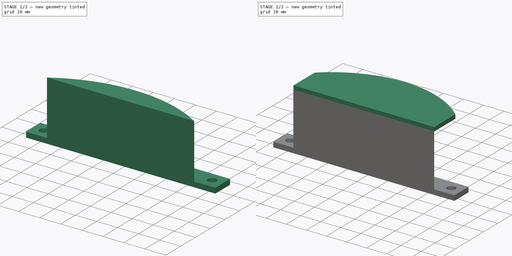
[diagram: build sequence overview — one tinted view per stage of 2, left to right]
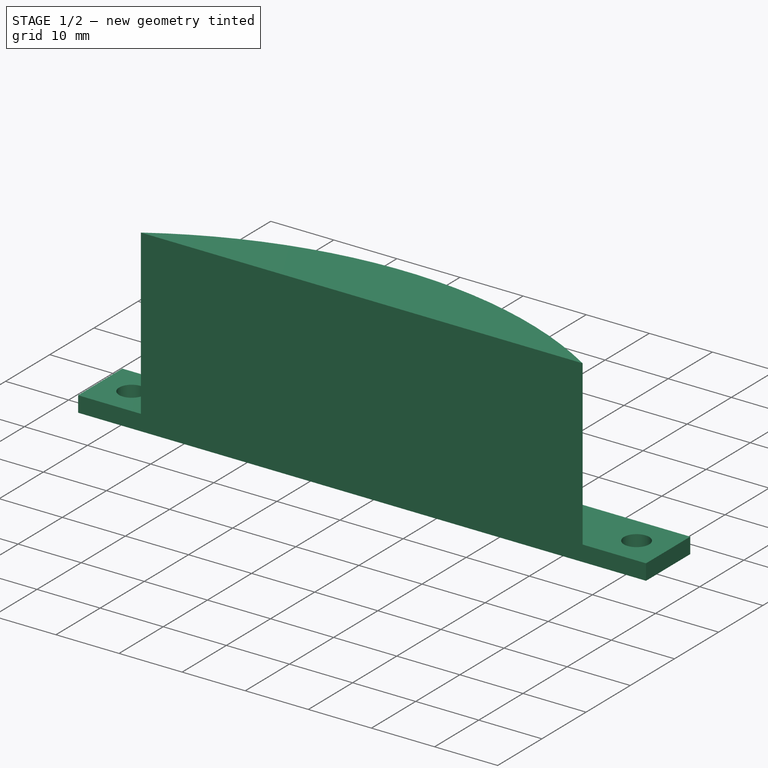
[diagram: stage 1 of 2 — iso view after this stage's code; geometry added in this stage tinted green]
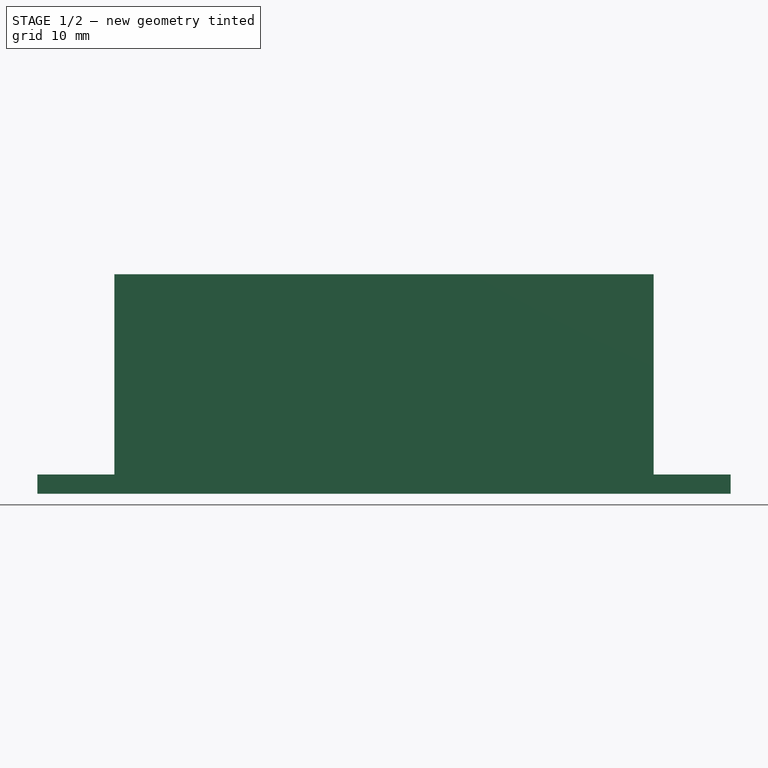
[diagram: stage 1 of 2 — front view after this stage's code; geometry added in this stage tinted green]
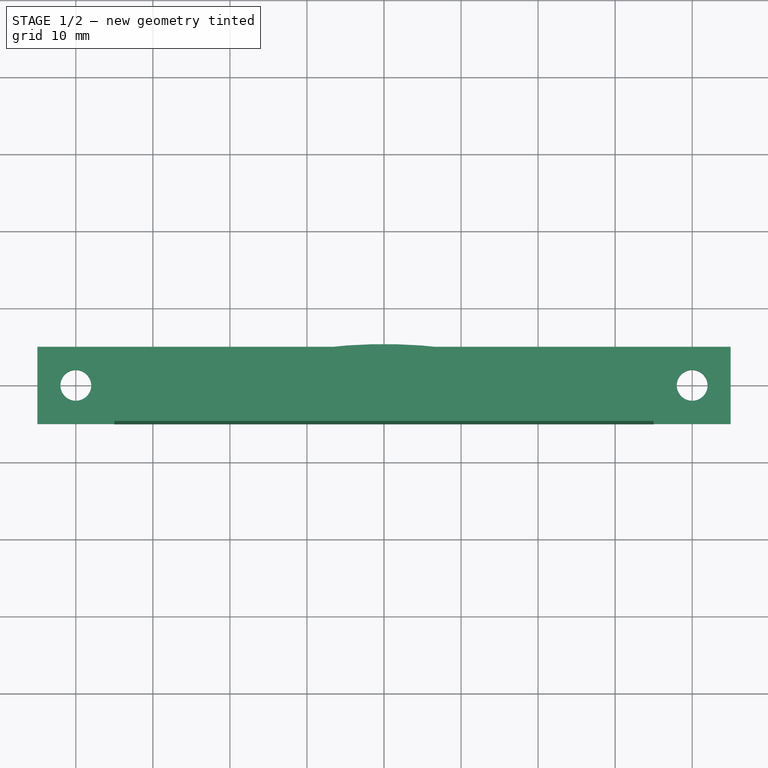
[diagram: stage 1 of 2 — top view after this stage's code; geometry added in this stage tinted green]
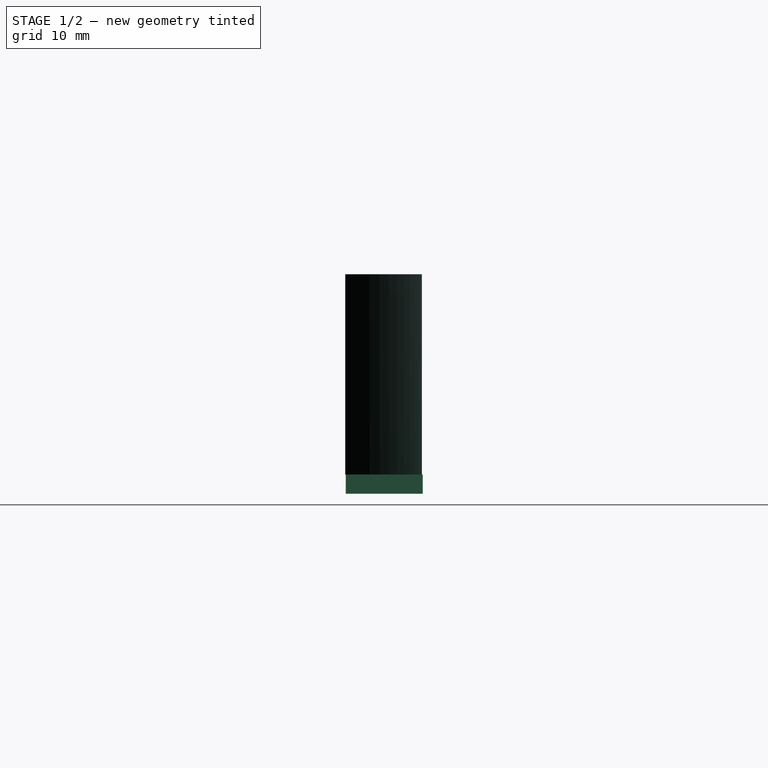
[diagram: stage 1 of 2 — right view after this stage's code; geometry added in this stage tinted green]
FCSTD DOCUMENT  (FreeCAD 0.16R6712 (Git))
Label: Porte lunettes
License: All rights reserved
LicenseURL: http://en.wikipedia.org/wiki/All_rights_reserved
objects: Sketcher::SketchObject×3, PartDesign::Pad×3
note: 9 computed .brp shape members not serialized (recipe doc carries the construction recipe); baked Part::Feature solids carry a one-line shape summary decoded from their .brp

FEATURE [Sketcher::SketchObject] Sketch
  sketch-geometry (6):
    g0: LineSegment StartX=-45 StartY=5 StartZ=0 EndX=45 EndY=5 EndZ=0
    g1: LineSegment StartX=45 StartY=5 StartZ=0 EndX=45 EndY=-5 EndZ=0
    g2: LineSegment StartX=45 StartY=-5 StartZ=0 EndX=-45 EndY=-5 EndZ=0
    g3: LineSegment StartX=-45 StartY=-5 StartZ=0 EndX=-45 EndY=5 EndZ=0
    g4: Circle CenterX=-40 CenterY=0 CenterZ=0 NormalX=0 NormalY=0 NormalZ=1 Radius=2
    g5: Circle CenterX=40 CenterY=0 CenterZ=0 NormalX=0 NormalY=0 NormalZ=1 Radius=2
  constraints (18):
    c: Coincident(g0,g1)
    c: Coincident(g1,g2)
    c: Coincident(g2,g3)
    c: Coincident(g3,g0)
    c: Horizontal(g0)
    c: Horizontal(g2)
    c: Vertical(g1)
    c: Vertical(g3)
    c: Symmetric(g0,g0,g-2)
    c: Symmetric(g2,g0,g-1)
    c: DistanceX(g0,g0) = 90
    c: DistanceY(g3,g3) = 10
    c: PointOnObject(g4,g-1)
    c: Radius(g4) = 2
    c: DistanceX(g0,g4) = 5
    c: PointOnObject(g5,g-1)
    c: Radius(g5) = 2
    c: Symmetric(g5,g4,g-2)
FEATURE [PartDesign::Pad] Pad
  Length = 2.5
  Length2 = 100
  Sketch = -> Sketch
  Type = 0
FEATURE [Sketcher::SketchObject] Sketch001
  Placement = pos=(0,0,2.5) rot=(0,0,1;0rad)
  Support = -> Pad [Face8]
  sketch-geometry (2):
    g0: ArcOfCircle CenterX=0 CenterY=-61.5462 CenterZ=0 NormalX=0 NormalY=0 NormalZ=1 Radius=66.443 StartAngle=1.016 EndAngle=2.12559
    g1: LineSegment StartX=-35 StartY=-5.06899 StartZ=0 EndX=35 EndY=-5.06899 EndZ=0
  constraints (6):
    c: PointOnObject(g0,g-2)
    c: Symmetric(g0,g0,g-2)
    c: DistanceX(g0,g0) = 70
    c: Coincident(g1,g0)
    c: Coincident(g1,g0)
    c: Horizontal(g1)
FEATURE [PartDesign::Pad] Pad001
  Length = 26
  Length2 = 100
  Sketch = -> Sketch001
  Type = 0
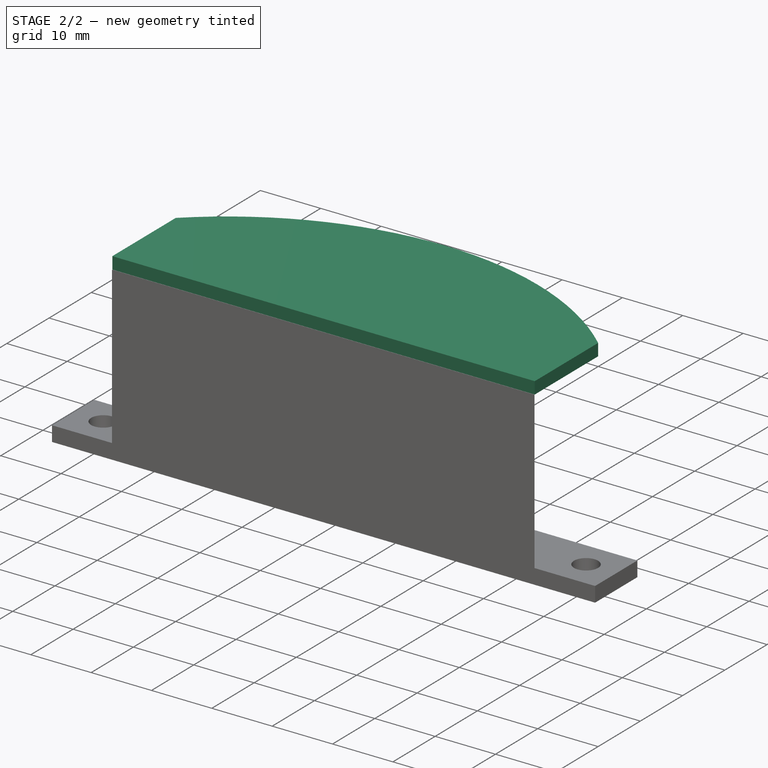
[diagram: stage 2 of 2 — iso view after this stage's code; geometry added in this stage tinted green]
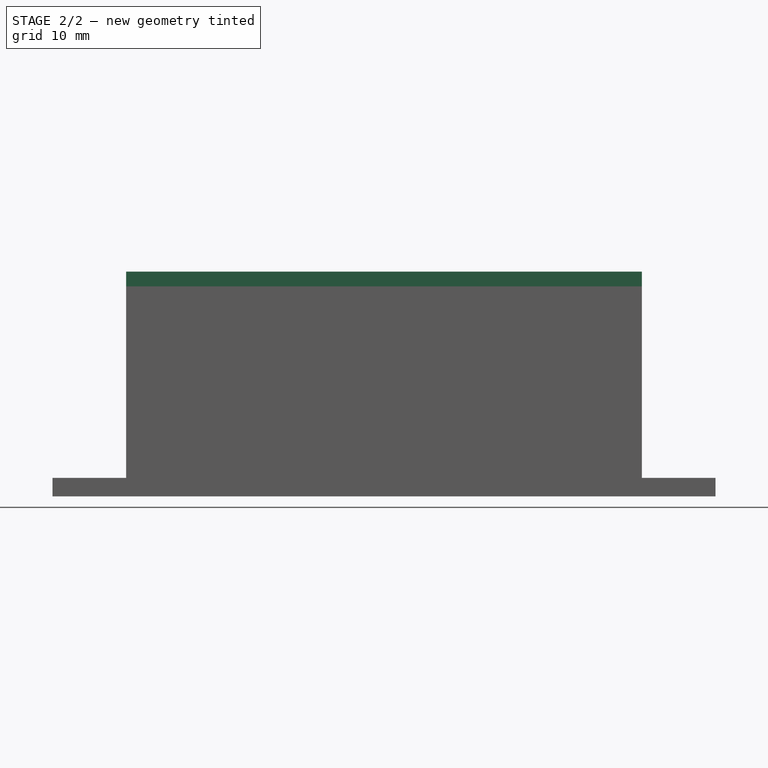
[diagram: stage 2 of 2 — front view after this stage's code; geometry added in this stage tinted green]
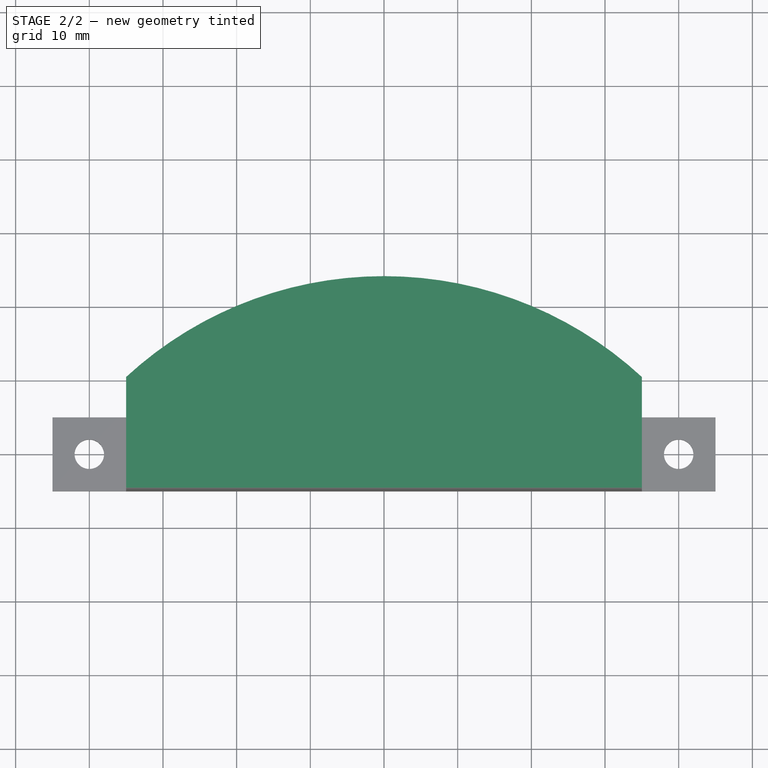
[diagram: stage 2 of 2 — top view after this stage's code; geometry added in this stage tinted green]
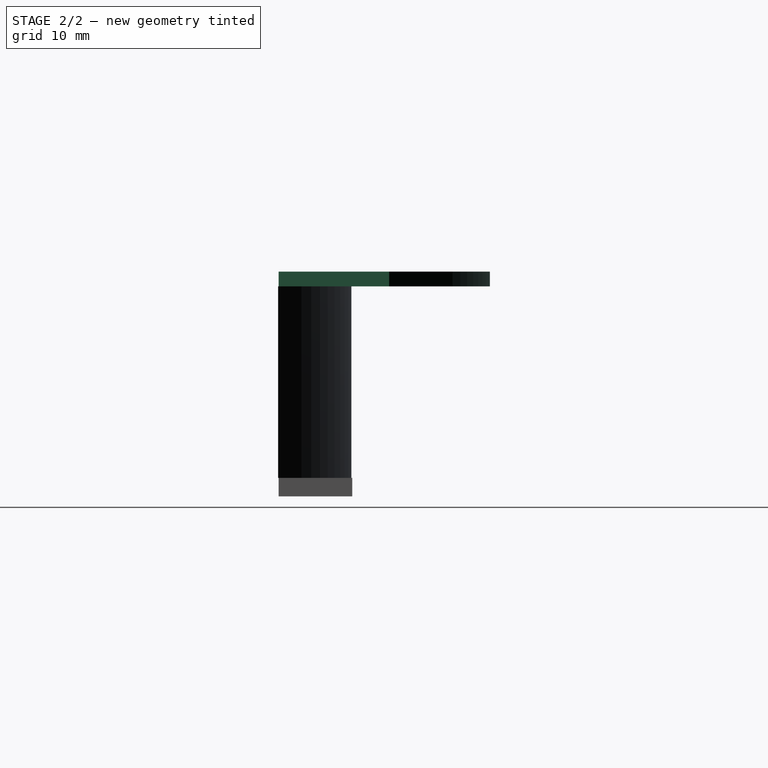
[diagram: stage 2 of 2 — right view after this stage's code; geometry added in this stage tinted green]
FEATURE [Sketcher::SketchObject] Sketch002
  Placement = pos=(0,0,28.5) rot=(0,0,1;0rad)
  Support = -> Pad001 [Face12]
  sketch-geometry (4):
    g0: ArcOfCircle CenterX=0 CenterY=-27.9096 CenterZ=0 NormalX=0 NormalY=0 NormalZ=1 Radius=51.5959 StartAngle=0.825283 EndAngle=2.31631
    g1: LineSegment StartX=-35 StartY=-5 StartZ=0 EndX=-35 EndY=10 EndZ=0
    g2: LineSegment StartX=-35 StartY=-5 StartZ=0 EndX=35 EndY=-5 EndZ=0
    g3: LineSegment StartX=35 StartY=10 StartZ=0 EndX=35 EndY=-5 EndZ=0
  constraints (12):
    c: PointOnObject(g0,g-2)
    c: Symmetric(g0,g0,g-2)
    c: Coincident(g1,g0)
    c: Vertical(g1)
    c: Coincident(g2,g1)
    c: Horizontal(g2)
    c: Coincident(g3,g0)
    c: Coincident(g3,g2)
    c: Vertical(g3)
    c: DistanceX(g1,g2) = 70
    c: DistanceY(g1,g-1) = 5
    c: DistanceY(g-1,g0) = 10
FEATURE [PartDesign::Pad] Pad002
  Length = 2
  Length2 = 100
  Sketch = -> Sketch002
  Type = 0
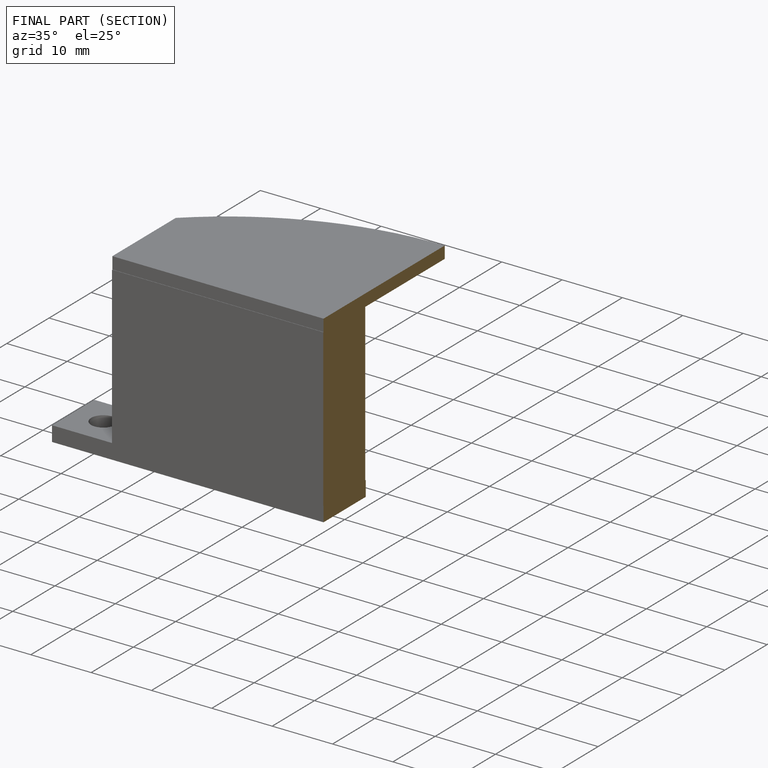
[diagram: finished part — half-section view (interior)]
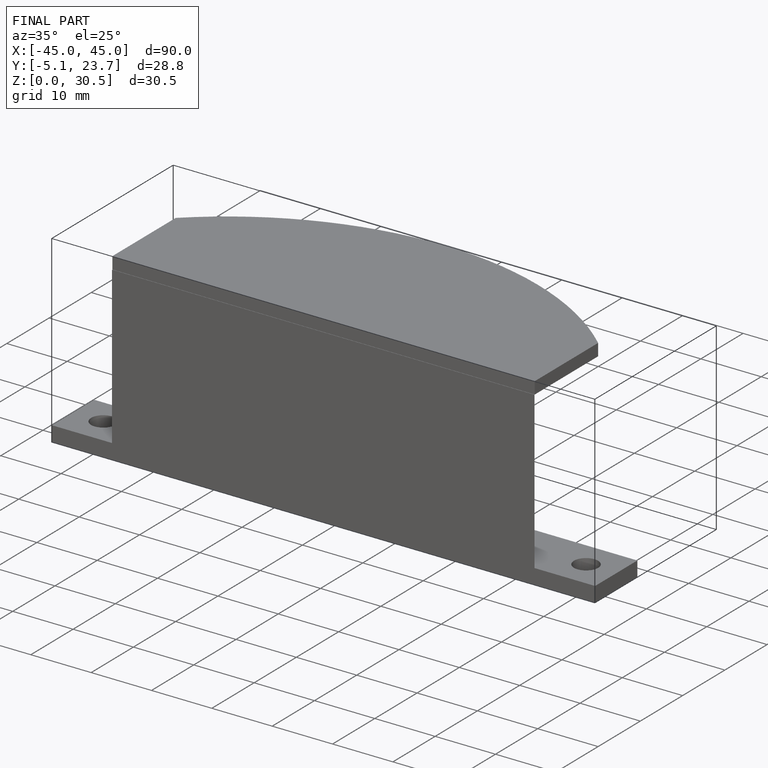
[diagram: finished part — iso view with bounding-box wireframe]
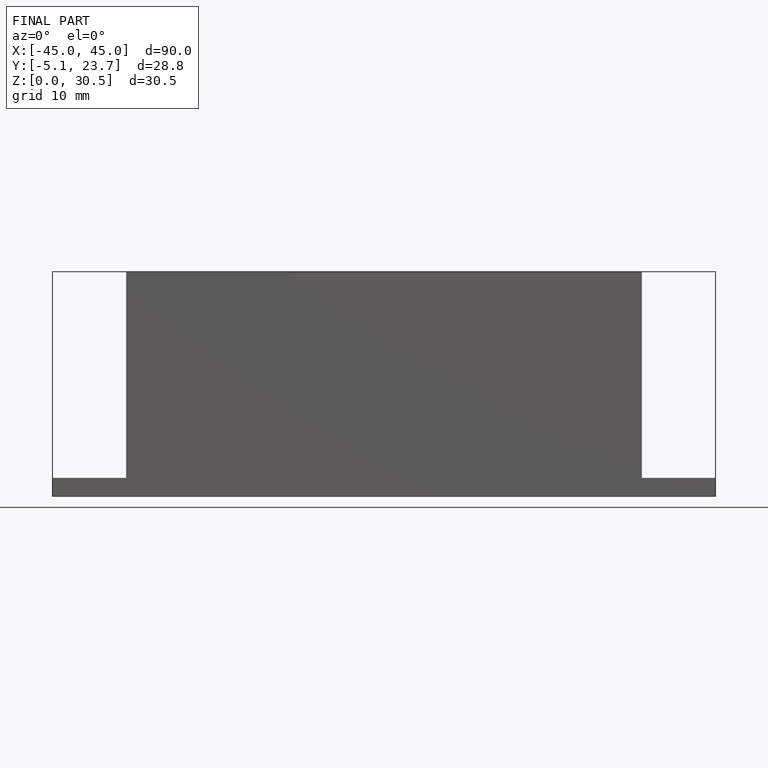
[diagram: finished part — front view with bounding-box wireframe]
